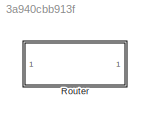
MODEL slx_3a940cbb913f
KIND library
CONFIG AbsTol = auto
CONFIG EnableMultiTasking = off
CONFIG FixedStep = auto
CONFIG MaxStep = auto
CONFIG MinStep = auto
CONFIG RelTol = 1e-3
CONFIG SampleTimeConstraint = Unconstrained
CONFIG SolverName = VariableStepAuto
CONFIG StartTime = 0.0
CONFIG StopTime = 10.0
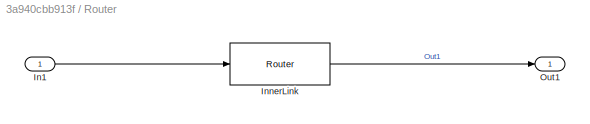
BLOCK [SubSystem] Router
BLOCK [Inport] Router/In1
BLOCK [Reference] Router/InnerLink  REF=RouterBtc/Router
  SourceBlock = RouterBtc/Router
  SourceProductName = Bose Blocklib
  SourceType = Blocklib Router
BLOCK [Outport] Router/Out1
LINE Router/In1:1 -> Router/InnerLink:1
LINE Router/InnerLink:1 -> Router/Out1:1
